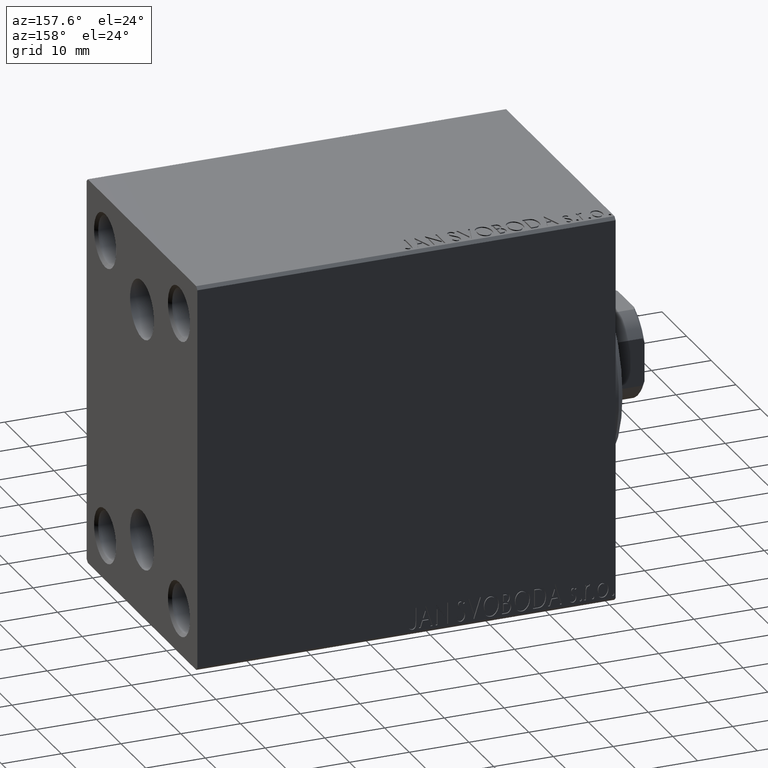
[diagram: clean part render]
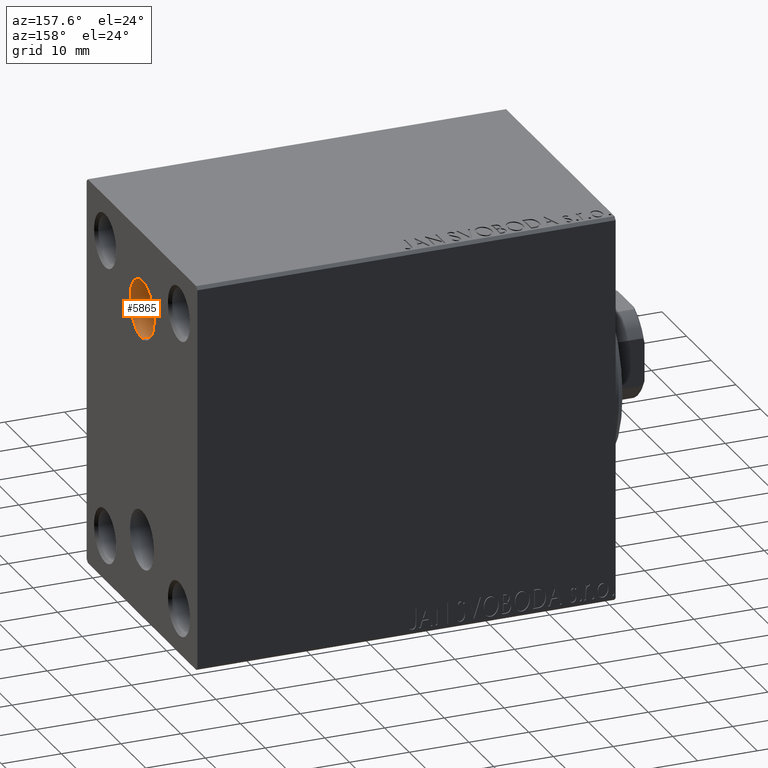
[diagram: same view with one face highlighted and labeled with its STEP entity id]
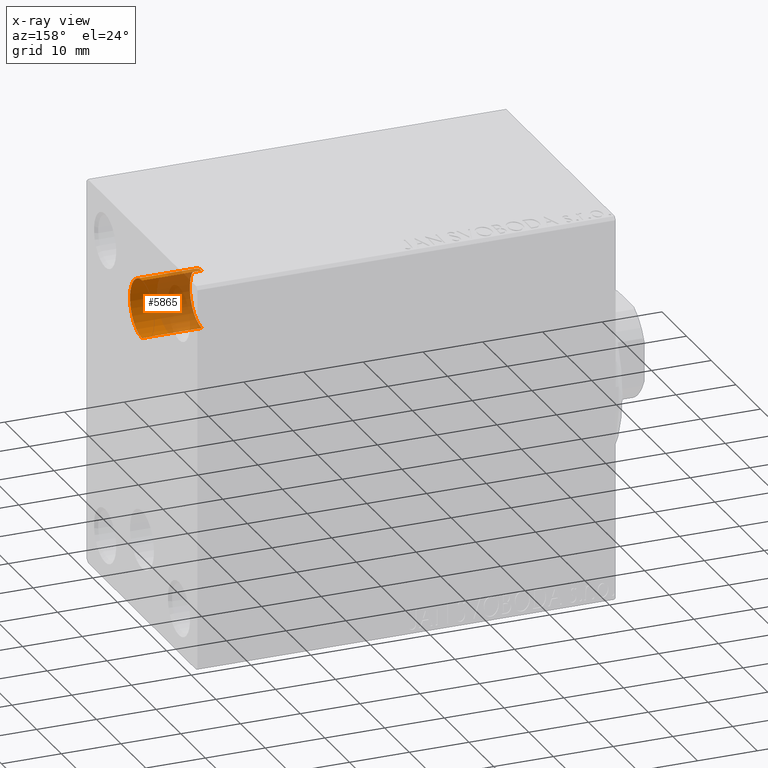
[diagram: x-ray of the same camera — body ghosted, the highlighted face saturated]
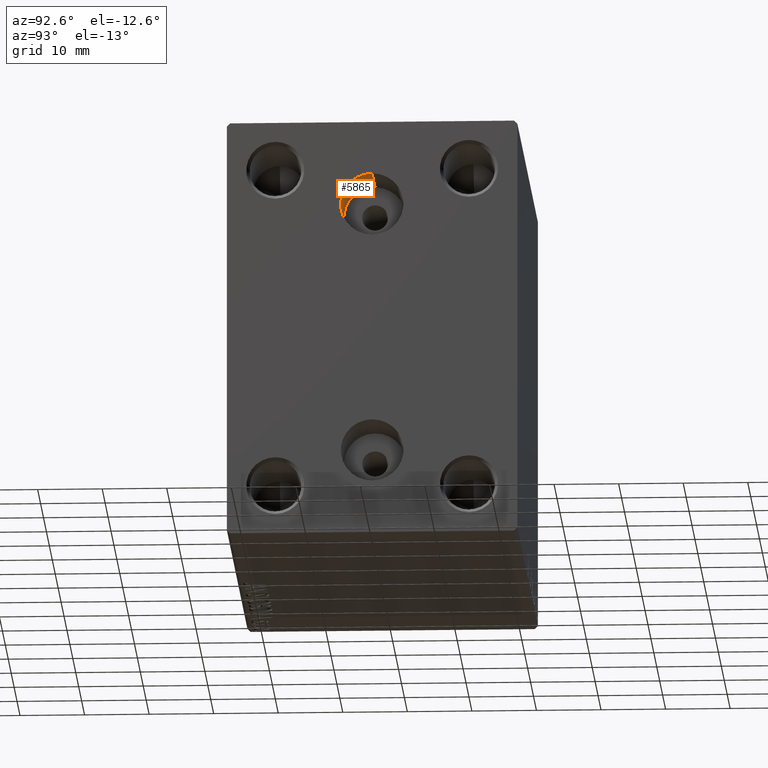
[diagram: same view with one face highlighted and labeled with its STEP entity id]
A machine part, auxiliary view. The second image highlights one B-rep face of the part: STEP entity #5865.
The next image is the same camera in x-ray: the body ghosted, the highlighted face saturated — about 55% of this face is hidden behind the body in this view.
A second angle (auxiliary view) of the same face is appended — the face is thin or edge-on in the first view.
In plain terms, the highlighted cylindrical surface (edge-blend (fillet) strip) has radius 4.86 mm, axis along (1, 0, 0).
Its self-contained STEP definition (entity closure, byte-faithful):
#195 = DIRECTION ( 'NONE',  ( 1.000000000000000000, -0.000000000000000000, -0.000000000000000000 ) ) ;
#3682 = EDGE_LOOP ( 'NONE', ( #34933, #10078, #44000, #41026 ) ) ;
#4307 = VERTEX_POINT ( 'NONE', #19740 ) ;
#4595 = VERTEX_POINT ( 'NONE', #42973 ) ;
#5865 = ADVANCED_FACE ( 'NONE', ( #21236 ), #34890, .F. ) ;
#7850 = CARTESIAN_POINT ( 'NONE',  ( 60.00000000000000711, -3.571693674697836683E-15, 19.49999999999999645 ) ) ;
#9120 = DIRECTION ( 'NONE',  ( 1.000000000000000000, 0.000000000000000000, 0.000000000000000000 ) ) ;
#9376 = DIRECTION ( 'NONE',  ( 0.000000000000000000, 0.000000000000000000, -1.000000000000000000 ) ) ;
#9687 = LINE ( 'NONE', #16379, #19576 ) ;
#10078 = ORIENTED_EDGE ( 'NONE', *, *, #19767, .T. ) ;
#12399 = CIRCLE ( 'NONE', #15934, 4.859999999999999432 ) ;
#12681 = CARTESIAN_POINT ( 'NONE',  ( 70.00000000000000000, -3.571693674697836683E-15, 19.49999999999999645 ) ) ;
#13258 = DIRECTION ( 'NONE',  ( 1.000000000000000000, -0.000000000000000000, -0.000000000000000000 ) ) ;
#14884 = AXIS2_PLACEMENT_3D ( 'NONE', #30640, #20796, #30866 ) ;
#15934 = AXIS2_PLACEMENT_3D ( 'NONE', #12681, #9120, #43542 ) ;
#16379 = CARTESIAN_POINT ( 'NONE',  ( 60.00000000000000711, -3.571693674697836683E-15, 14.63999999999999702 ) ) ;
#17122 = AXIS2_PLACEMENT_3D ( 'NONE', #7850, #32414, #9376 ) ;
#17808 = CARTESIAN_POINT ( 'NONE',  ( 70.00000000000000000, -3.571693674697836683E-15, 14.63999999999999702 ) ) ;
#18126 = CARTESIAN_POINT ( 'NONE',  ( 60.00000000000000711, -2.976515330312223406E-15, 24.35999999999999588 ) ) ;
#19576 = VECTOR ( 'NONE', #13258, 1000.000000000000000 ) ;
#19740 = CARTESIAN_POINT ( 'NONE',  ( 60.00000000000000711, -3.571693674697836683E-15, 14.63999999999999702 ) ) ;
#19767 = EDGE_CURVE ( 'NONE', #22629, #4595, #33690, .T. ) ;
#20796 = DIRECTION ( 'NONE',  ( 1.000000000000000000, 0.000000000000000000, 0.000000000000000000 ) ) ;
#21091 = EDGE_CURVE ( 'NONE', #4307, #37514, #9687, .T. ) ;
#21236 = FACE_OUTER_BOUND ( 'NONE', #3682, .T. ) ;
#22629 = VERTEX_POINT ( 'NONE', #18126 ) ;
#23783 = EDGE_CURVE ( 'NONE', #4595, #37514, #12399, .T. ) ;
#28770 = EDGE_CURVE ( 'NONE', #22629, #4307, #34165, .T. ) ;
#30640 = CARTESIAN_POINT ( 'NONE',  ( 60.00000000000000711, -3.571693674697836683E-15, 19.49999999999999645 ) ) ;
#30866 = DIRECTION ( 'NONE',  ( 0.000000000000000000, 0.000000000000000000, -1.000000000000000000 ) ) ;
#32414 = DIRECTION ( 'NONE',  ( 1.000000000000000000, -0.000000000000000000, -0.000000000000000000 ) ) ;
#33690 = LINE ( 'NONE', #37716, #37407 ) ;
#34165 = CIRCLE ( 'NONE', #14884, 4.859999999999999432 ) ;
#34890 = CYLINDRICAL_SURFACE ( 'NONE', #17122, 4.859999999999999432 ) ;
#34933 = ORIENTED_EDGE ( 'NONE', *, *, #28770, .F. ) ;
#37407 = VECTOR ( 'NONE', #195, 1000.000000000000000 ) ;
#37514 = VERTEX_POINT ( 'NONE', #17808 ) ;
#37716 = CARTESIAN_POINT ( 'NONE',  ( 60.00000000000000711, -2.976515330312223406E-15, 24.35999999999999588 ) ) ;
#41026 = ORIENTED_EDGE ( 'NONE', *, *, #21091, .F. ) ;
#42973 = CARTESIAN_POINT ( 'NONE',  ( 70.00000000000000000, -2.976515330312223406E-15, 24.35999999999999588 ) ) ;
#43542 = DIRECTION ( 'NONE',  ( 0.000000000000000000, 0.000000000000000000, -1.000000000000000000 ) ) ;
#44000 = ORIENTED_EDGE ( 'NONE', *, *, #23783, .T. ) ;